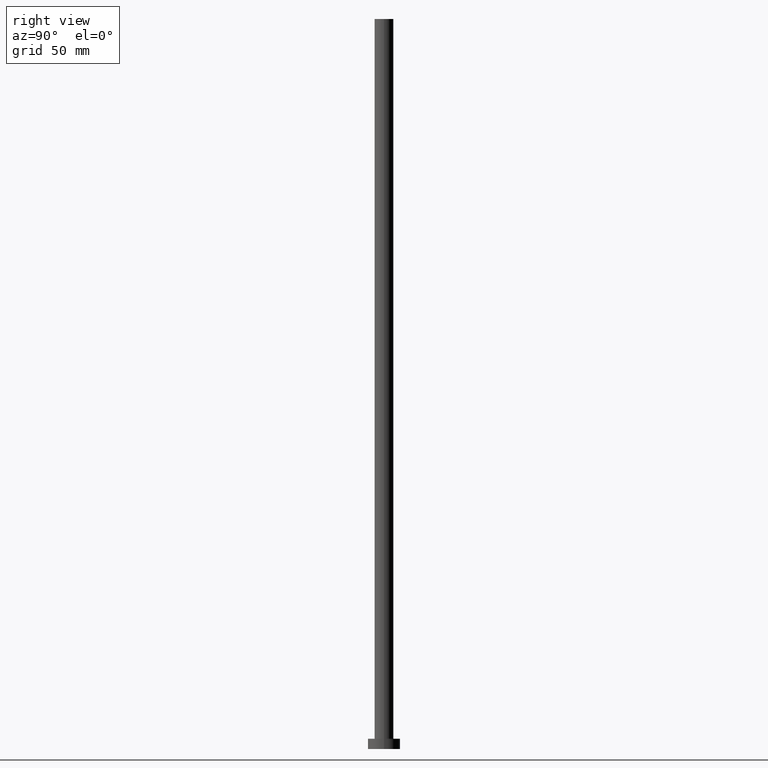
[diagram: clean part render]
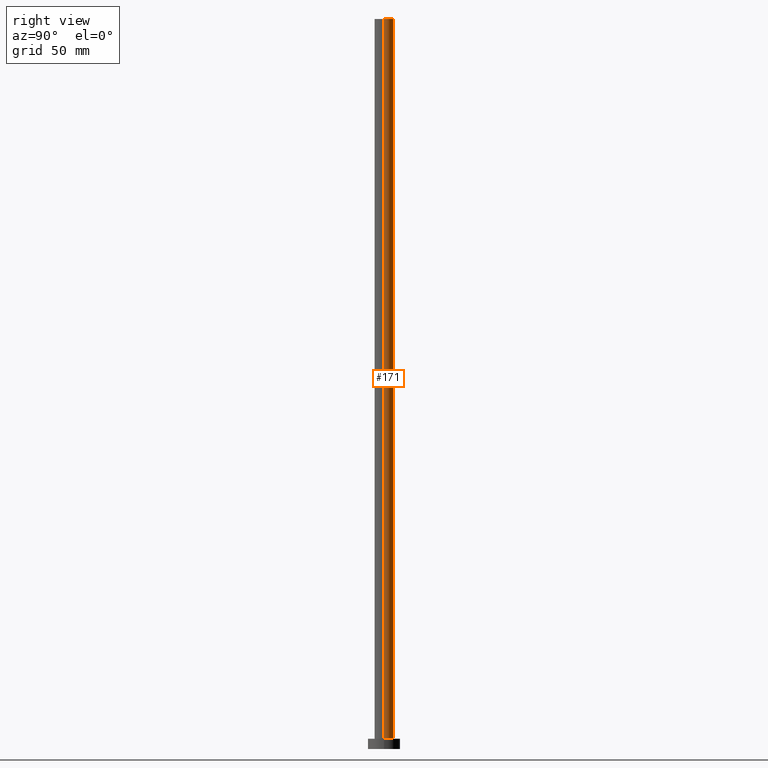
[diagram: same view with one face highlighted and labeled with its STEP entity id]
A machine part, right view. The second image highlights one B-rep face of the part: STEP entity #171.
In plain terms, the highlighted cylindrical surface (edge-blend (fillet) strip) has radius 6.5 mm, axis along (-0, -0, -1).
Its self-contained STEP definition (entity closure, byte-faithful):
#6 = DIRECTION ( 'NONE',  ( -0.000000000000000000, -0.000000000000000000, -1.000000000000000000 ) ) ;
#9 = CARTESIAN_POINT ( 'NONE',  ( 0.000000000000000000, 0.000000000000000000, 500.0000000000000000 ) ) ;
#10 = CARTESIAN_POINT ( 'NONE',  ( 6.500000000000000888, 7.960204194457796463E-16, 7.000000000000000000 ) ) ;
#14 = VECTOR ( 'NONE', #6, 1000.000000000000000 ) ;
#18 = VERTEX_POINT ( 'NONE', #103 ) ;
#24 = EDGE_CURVE ( 'NONE', #150, #156, #189, .T. ) ;
#32 = DIRECTION ( 'NONE',  ( 1.000000000000000000, 0.000000000000000000, 0.000000000000000000 ) ) ;
#45 = AXIS2_PLACEMENT_3D ( 'NONE', #140, #87, #121 ) ;
#48 = LINE ( 'NONE', #50, #74 ) ;
#50 = CARTESIAN_POINT ( 'NONE',  ( 6.500000000000000888, 7.960204194457796463E-16, 500.0000000000000000 ) ) ;
#56 = ORIENTED_EDGE ( 'NONE', *, *, #64, .F. ) ;
#64 = EDGE_CURVE ( 'NONE', #18, #156, #142, .T. ) ;
#65 = CARTESIAN_POINT ( 'NONE',  ( -6.500000000000000888, 0.000000000000000000, 500.0000000000000000 ) ) ;
#70 = CARTESIAN_POINT ( 'NONE',  ( 6.500000000000000888, 7.960204194457796463E-16, 500.0000000000000000 ) ) ;
#74 = VECTOR ( 'NONE', #203, 1000.000000000000000 ) ;
#87 = DIRECTION ( 'NONE',  ( -0.000000000000000000, -0.000000000000000000, -1.000000000000000000 ) ) ;
#89 = FACE_OUTER_BOUND ( 'NONE', #95, .T. ) ;
#93 = EDGE_CURVE ( 'NONE', #211, #150, #48, .T. ) ;
#95 = EDGE_LOOP ( 'NONE', ( #153, #217, #209, #56 ) ) ;
#101 = CARTESIAN_POINT ( 'NONE',  ( 0.000000000000000000, 0.000000000000000000, 7.000000000000000000 ) ) ;
#103 = CARTESIAN_POINT ( 'NONE',  ( -6.500000000000000888, 0.000000000000000000, 500.0000000000000000 ) ) ;
#118 = DIRECTION ( 'NONE',  ( 0.000000000000000000, 0.000000000000000000, 1.000000000000000000 ) ) ;
#121 = DIRECTION ( 'NONE',  ( -1.000000000000000000, 0.000000000000000000, 0.000000000000000000 ) ) ;
#133 = EDGE_CURVE ( 'NONE', #211, #18, #169, .T. ) ;
#140 = CARTESIAN_POINT ( 'NONE',  ( 0.000000000000000000, 0.000000000000000000, 500.0000000000000000 ) ) ;
#142 = LINE ( 'NONE', #65, #14 ) ;
#146 = DIRECTION ( 'NONE',  ( 1.000000000000000000, 0.000000000000000000, 0.000000000000000000 ) ) ;
#150 = VERTEX_POINT ( 'NONE', #10 ) ;
#153 = ORIENTED_EDGE ( 'NONE', *, *, #133, .F. ) ;
#156 = VERTEX_POINT ( 'NONE', #187 ) ;
#160 = AXIS2_PLACEMENT_3D ( 'NONE', #101, #118, #146 ) ;
#166 = CYLINDRICAL_SURFACE ( 'NONE', #45, 6.500000000000000888 ) ;
#169 = CIRCLE ( 'NONE', #235, 6.500000000000000888 ) ;
#171 = ADVANCED_FACE ( 'NONE', ( #89 ), #166, .T. ) ;
#187 = CARTESIAN_POINT ( 'NONE',  ( -6.500000000000000888, 0.000000000000000000, 7.000000000000000000 ) ) ;
#189 = CIRCLE ( 'NONE', #160, 6.500000000000000888 ) ;
#203 = DIRECTION ( 'NONE',  ( -0.000000000000000000, -0.000000000000000000, -1.000000000000000000 ) ) ;
#209 = ORIENTED_EDGE ( 'NONE', *, *, #24, .T. ) ;
#211 = VERTEX_POINT ( 'NONE', #70 ) ;
#217 = ORIENTED_EDGE ( 'NONE', *, *, #93, .T. ) ;
#223 = DIRECTION ( 'NONE',  ( 0.000000000000000000, 0.000000000000000000, 1.000000000000000000 ) ) ;
#235 = AXIS2_PLACEMENT_3D ( 'NONE', #9, #223, #32 ) ;